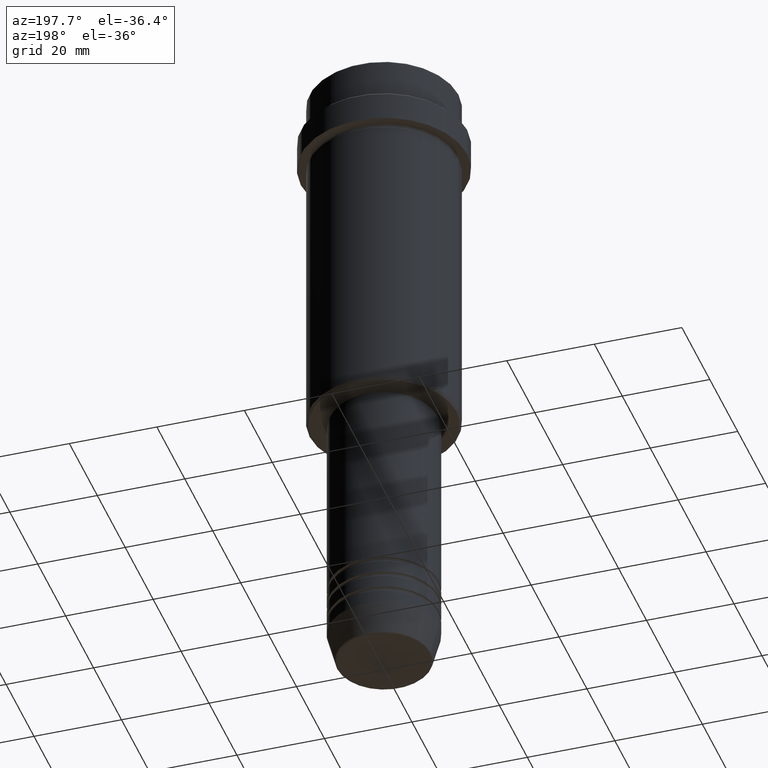
[diagram: clean part render]
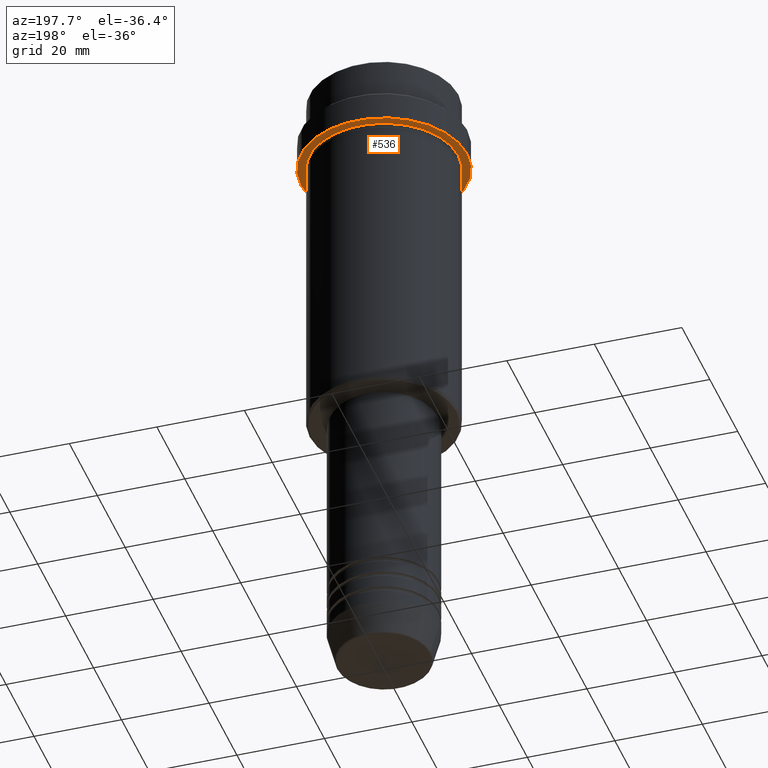
[diagram: same view with one face highlighted and labeled with its STEP entity id]
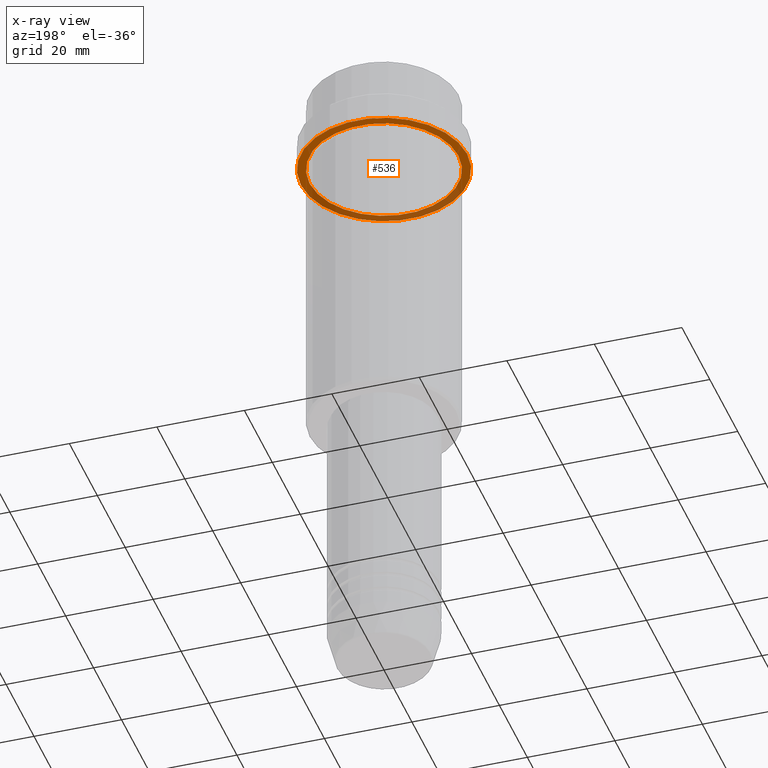
[diagram: x-ray of the same camera — body ghosted, the highlighted face saturated]
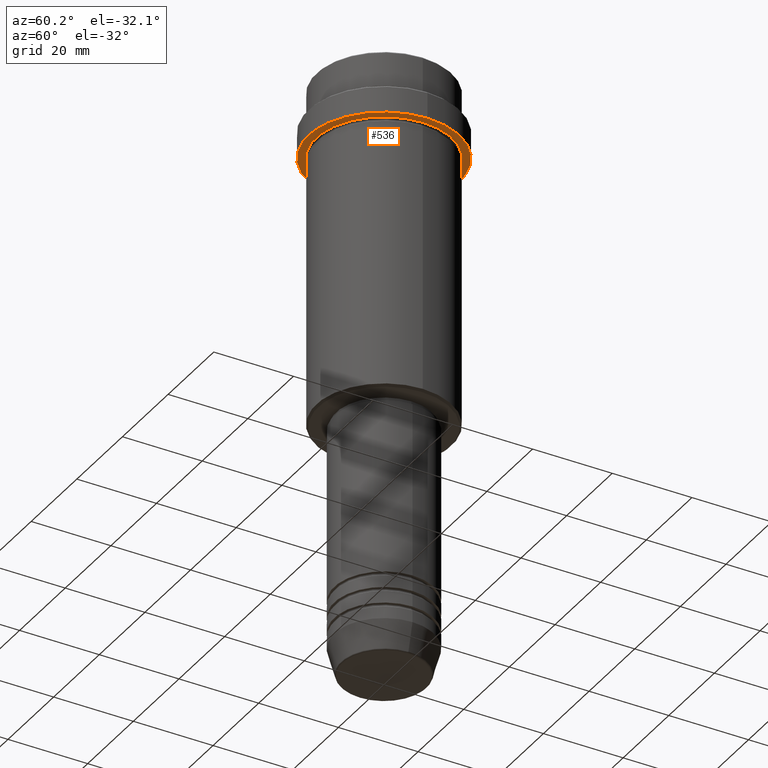
[diagram: same view with one face highlighted and labeled with its STEP entity id]
A machine part, auxiliary view. The second image highlights one B-rep face of the part: STEP entity #536.
The next image is the same camera in x-ray: the body ghosted, the highlighted face saturated — about 36% of this face is hidden behind the body in this view.
A second angle (auxiliary view) of the same face is appended — the face is thin or edge-on in the first view.
In plain terms, the highlighted planar face has unit normal (0, 0, -1).
Its self-contained STEP definition (entity closure, byte-faithful):
#15 = ORIENTED_EDGE ( 'NONE', *, *, #265, .T. ) ;
#39 = AXIS2_PLACEMENT_3D ( 'NONE', #588, #55, #66 ) ;
#55 = DIRECTION ( 'NONE',  ( -0.000000000000000000, -0.000000000000000000, 1.000000000000000000 ) ) ;
#66 = DIRECTION ( 'NONE',  ( 1.000000000000000000, 0.000000000000000000, 0.000000000000000000 ) ) ;
#108 = DIRECTION ( 'NONE',  ( -0.000000000000000000, -0.000000000000000000, 1.000000000000000000 ) ) ;
#112 = DIRECTION ( 'NONE',  ( 0.000000000000000000, 0.000000000000000000, -1.000000000000000000 ) ) ;
#118 = VERTEX_POINT ( 'NONE', #633 ) ;
#119 = PLANE ( 'NONE',  #710 ) ;
#157 = CARTESIAN_POINT ( 'NONE',  ( 16.99999999999997868, 2.081899558550498307E-15, -17.00000000000000000 ) ) ;
#181 = VERTEX_POINT ( 'NONE', #157 ) ;
#212 = CIRCLE ( 'NONE', #413, 16.99999999999997868 ) ;
#265 = EDGE_CURVE ( 'NONE', #1027, #181, #1409, .T. ) ;
#274 = CARTESIAN_POINT ( 'NONE',  ( 0.000000000000000000, 0.000000000000000000, -17.00000000000000000 ) ) ;
#320 = EDGE_CURVE ( 'NONE', #945, #118, #978, .T. ) ;
#366 = ORIENTED_EDGE ( 'NONE', *, *, #765, .T. ) ;
#413 = AXIS2_PLACEMENT_3D ( 'NONE', #274, #1365, #1250 ) ;
#435 = DIRECTION ( 'NONE',  ( -1.000000000000000000, 0.000000000000000000, -0.000000000000000000 ) ) ;
#464 = DIRECTION ( 'NONE',  ( -1.000000000000000000, 0.000000000000000000, 0.000000000000000000 ) ) ;
#530 = CARTESIAN_POINT ( 'NONE',  ( 0.000000000000000000, 0.000000000000000000, -17.00000000000000000 ) ) ;
#536 = ADVANCED_FACE ( 'NONE', ( #1235, #1094 ), #119, .T. ) ;
#537 = DIRECTION ( 'NONE',  ( 1.000000000000000000, 0.000000000000000000, 0.000000000000000000 ) ) ;
#548 = CARTESIAN_POINT ( 'NONE',  ( 0.000000000000000000, 18.99999999999998579, -17.00000000000000000 ) ) ;
#588 = CARTESIAN_POINT ( 'NONE',  ( 0.000000000000000000, 0.000000000000000000, -17.00000000000000000 ) ) ;
#633 = CARTESIAN_POINT ( 'NONE',  ( 18.99999999999998579, 0.000000000000000000, -17.00000000000000000 ) ) ;
#710 = AXIS2_PLACEMENT_3D ( 'NONE', #548, #112, #435 ) ;
#763 = EDGE_CURVE ( 'NONE', #118, #945, #1079, .T. ) ;
#765 = EDGE_CURVE ( 'NONE', #181, #1027, #212, .T. ) ;
#792 = AXIS2_PLACEMENT_3D ( 'NONE', #1165, #1056, #464 ) ;
#859 = EDGE_LOOP ( 'NONE', ( #1084, #1303 ) ) ;
#895 = EDGE_LOOP ( 'NONE', ( #15, #366 ) ) ;
#929 = AXIS2_PLACEMENT_3D ( 'NONE', #530, #108, #537 ) ;
#945 = VERTEX_POINT ( 'NONE', #946 ) ;
#946 = CARTESIAN_POINT ( 'NONE',  ( -18.99999999999998579, 2.326828918379969393E-15, -17.00000000000000000 ) ) ;
#978 = CIRCLE ( 'NONE', #929, 18.99999999999998579 ) ;
#1027 = VERTEX_POINT ( 'NONE', #1073 ) ;
#1056 = DIRECTION ( 'NONE',  ( -0.000000000000000000, -0.000000000000000000, 1.000000000000000000 ) ) ;
#1073 = CARTESIAN_POINT ( 'NONE',  ( -16.99999999999997868, 0.000000000000000000, -17.00000000000000000 ) ) ;
#1079 = CIRCLE ( 'NONE', #39, 18.99999999999998579 ) ;
#1084 = ORIENTED_EDGE ( 'NONE', *, *, #763, .F. ) ;
#1094 = FACE_OUTER_BOUND ( 'NONE', #859, .T. ) ;
#1165 = CARTESIAN_POINT ( 'NONE',  ( 0.000000000000000000, 0.000000000000000000, -17.00000000000000000 ) ) ;
#1235 = FACE_BOUND ( 'NONE', #895, .T. ) ;
#1250 = DIRECTION ( 'NONE',  ( -1.000000000000000000, 0.000000000000000000, 0.000000000000000000 ) ) ;
#1303 = ORIENTED_EDGE ( 'NONE', *, *, #320, .F. ) ;
#1365 = DIRECTION ( 'NONE',  ( -0.000000000000000000, -0.000000000000000000, 1.000000000000000000 ) ) ;
#1409 = CIRCLE ( 'NONE', #792, 16.99999999999997868 ) ;